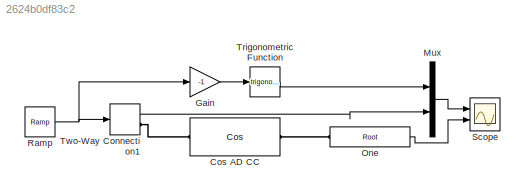
MODEL slx_2624b0df83c2
KIND model
CONFIG AbsTol = auto
CONFIG EnableMultiTasking = off
CONFIG FixedStep = auto
CONFIG MaxStep = auto
CONFIG MinStep = auto
CONFIG RelTol = 1e-3
CONFIG SampleTimeConstraint = Unconstrained
CONFIG Solver = VariableStepAuto
CONFIG SolverName = VariableStepAuto
CONFIG StartTime = 0.0
CONFIG StopTime = 10.0
BLOCK [Reference] Cos AD CC  REF=autodiff/Memberwise Scalar/Cos  (lib defined in slx_73a817ef6e8b)
  Ports = [0, 0, 0, 0, 0, 1, 1]
  SourceBlock = autodiff/Memberwise Scalar/Cos
  SourceProductName = AutoDiff
BLOCK [Gain] Gain
  Gain = -1
  OutDataTypeStr = Inherit: Inherit via internal rule
  ParamDataTypeStr = Inherit: Inherit via internal rule
  SaturateOnIntegerOverflow = off
BLOCK [Mux] Mux
  DisplayOption = bar
  Inputs = 2
  Ports = [2, 1]
BLOCK [Reference] One  REF=autodiff/Common/Root  (lib defined in slx_73a817ef6e8b)
  Ports = [0, 1, 0, 0, 0, 1]
  SourceBlock = autodiff/Common/Root
  SourceProductName = AutoDiff
BLOCK [Reference] Ramp  REF=simulink/Sources/Ramp
  Ports = [0, 1]
  SourceBlock = simulink/Sources/Ramp
  SourceProductBaseCode = SL
  SourceProductName = Simulink
  SourceType = Ramp
BLOCK [Scope] Scope
  NumInputPorts = 2
  Ports = [2]
  ScopeSpecificationString = Simulink.scopes.TimeScopeBlockCfg('CurrentConfiguration', extmgr.ConfigurationSet(extmgr.Configuration('Core','General UI',true),extmgr.Configuration('Core','Source UI',true),extmgr.Configuration('Sources','WiredSimulink',true),extmgr.Configuration('Visuals','Time Domain',true,'SerializedDisplays',{struct('MinYLimReal','-1.24904','MaxYLimReal','1.24563','YLabelReal','','MinYLimMag','0.00000','MaxY...<+2059ch>
BLOCK [Trigonometry] Trigonometric Function
  Ports = [1, 1]
BLOCK [TwoWayConnection] Two-Way Connection1
  Ports = [1, 1, 0, 0, 0, 0, 1]
LINE Gain:1 -> Trigonometric Function:1
LINE Mux:1 -> Scope:1
LINE One:1 -> Scope:2
NET Ramp:1 -> Gain:1, Two-Way Connection1:1
LINE Trigonometric Function:1 -> Mux:1
LINE Two-Way Connection1:1 -> Mux:2
PLINE Cos AD CC:LConn1 -- Two-Way Connection1:RConn1
PLINE Cos AD CC:RConn1 -- One:LConn1
note: NET lines group one-source signal fan-out (src -> all destinations, sorted); 1:1 wires keep LINE
